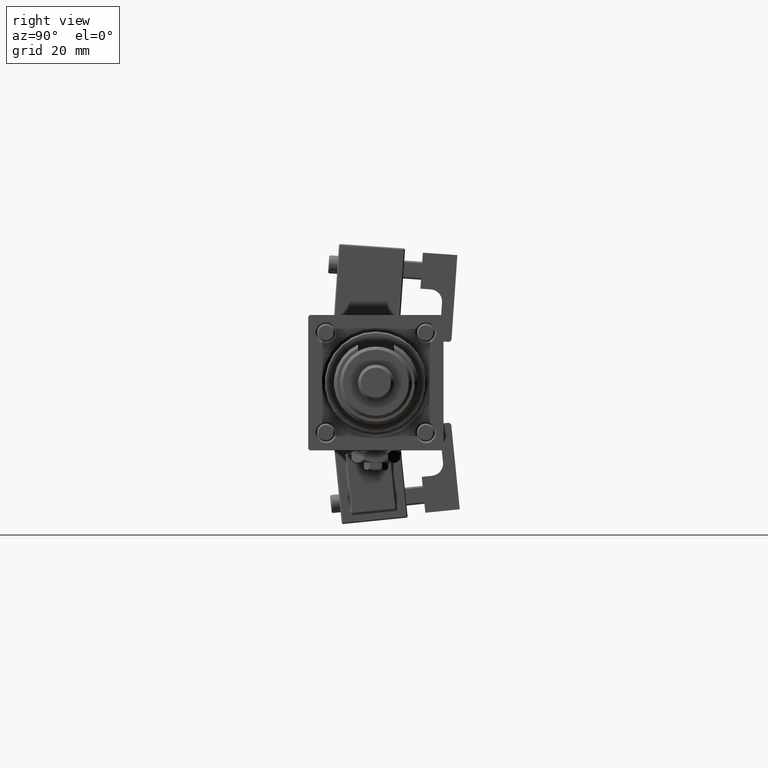
[diagram: clean part render]
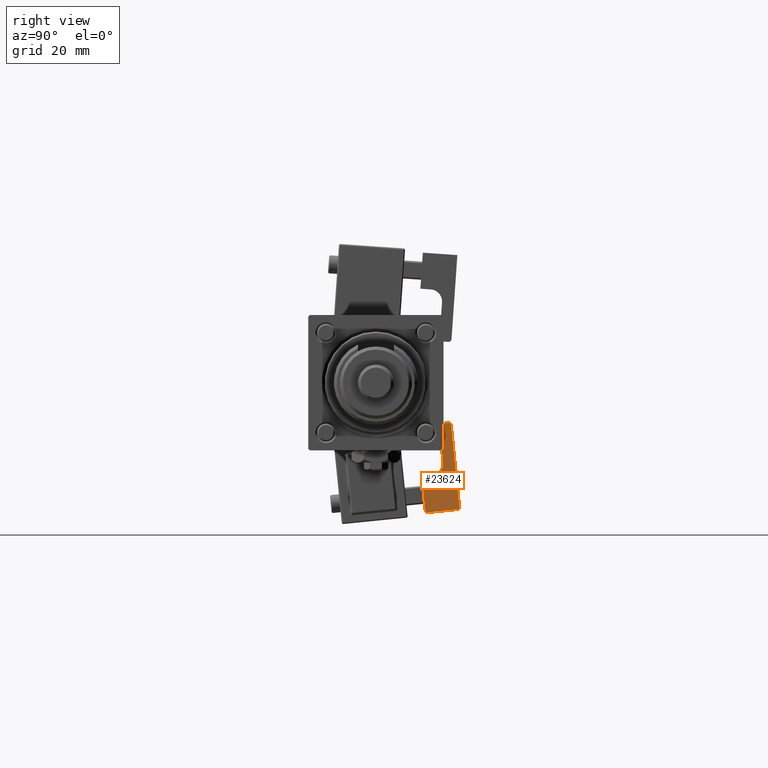
[diagram: same view with one face highlighted and labeled with its STEP entity id]
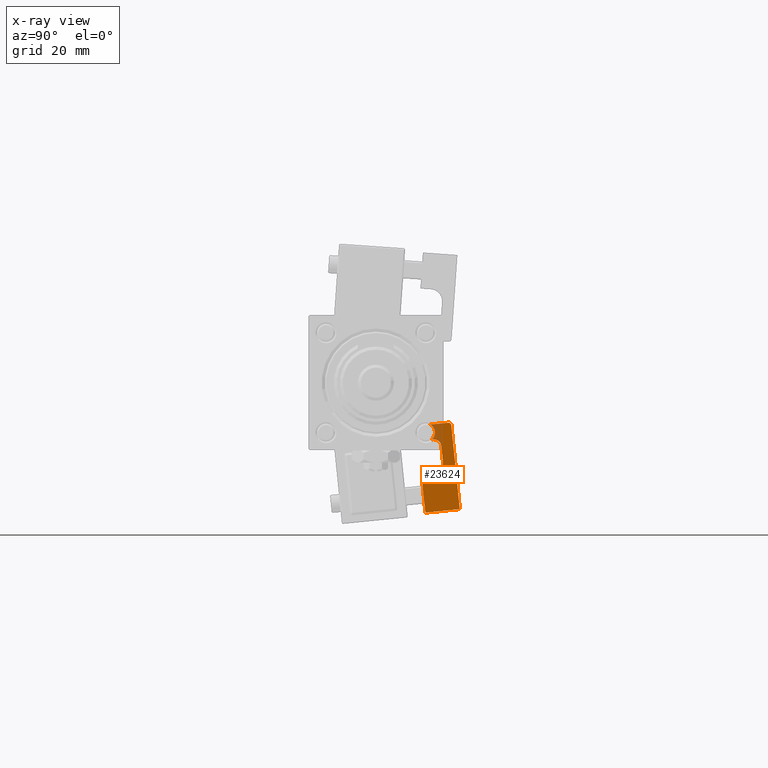
[diagram: x-ray of the same camera — body ghosted, the highlighted face saturated]
A machine part, right view. The second image highlights one B-rep face of the part: STEP entity #23624.
The next image is the same camera in x-ray: the body ghosted, the highlighted face saturated — about 9% of this face is hidden behind the body in this view.
In plain terms, the highlighted planar face has unit normal (-1, 0, 0).
Its self-contained STEP definition (entity closure, byte-faithful):
#560 = DIRECTION ( 'NONE',  ( 1.000000000000000000, -0.000000000000000000, -0.000000000000000000 ) ) ;
#645 = CARTESIAN_POINT ( 'NONE',  ( 5.750000000000000000, -0.7500000000000007772, 24.00000000000000000 ) ) ;
#732 = DIRECTION ( 'NONE',  ( -1.000000000000000000, 0.000000000000000000, 0.000000000000000000 ) ) ;
#939 = VECTOR ( 'NONE', #49760, 1000.000000000000000 ) ;
#1184 = VERTEX_POINT ( 'NONE', #7932 ) ;
#1903 = DIRECTION ( 'NONE',  ( -0.000000000000000000, 1.000000000000000000, -0.000000000000000000 ) ) ;
#2227 = FACE_OUTER_BOUND ( 'NONE', #51752, .T. ) ;
#3220 = ORIENTED_EDGE ( 'NONE', *, *, #60753, .T. ) ;
#4818 = EDGE_CURVE ( 'NONE', #17333, #14449, #44070, .T. ) ;
#5003 = CARTESIAN_POINT ( 'NONE',  ( 5.750000000000000000, 5.750000000000001776, 0.000000000000000000 ) ) ;
#5268 = VECTOR ( 'NONE', #16016, 1000.000000000000000 ) ;
#6730 = ORIENTED_EDGE ( 'NONE', *, *, #23138, .T. ) ;
#6750 = VECTOR ( 'NONE', #51138, 1000.000000000000000 ) ;
#6873 = VERTEX_POINT ( 'NONE', #54052 ) ;
#7206 = CARTESIAN_POINT ( 'NONE',  ( 5.750000000000000000, 5.750000000000000000, 29.00000000000000000 ) ) ;
#7501 = EDGE_CURVE ( 'NONE', #59745, #42732, #15166, .T. ) ;
#7932 = CARTESIAN_POINT ( 'NONE',  ( 5.750000000000000000, -1.249999999999999334, 24.00000000000000000 ) ) ;
#10207 = DIRECTION ( 'NONE',  ( 0.000000000000000000, 0.000000000000000000, 1.000000000000000000 ) ) ;
#10645 = CARTESIAN_POINT ( 'NONE',  ( 5.750000000000000000, -1.249999999999999334, 24.00000000000000000 ) ) ;
#11866 = AXIS2_PLACEMENT_3D ( 'NONE', #34960, #44016, #19787 ) ;
#11994 = VERTEX_POINT ( 'NONE', #24325 ) ;
#12386 = CARTESIAN_POINT ( 'NONE',  ( 5.750000000000000000, -1.249999999999999334, 29.00000000000000000 ) ) ;
#12469 = CARTESIAN_POINT ( 'NONE',  ( 5.750000000000000000, 1.750000000000000000, 24.00000000000000000 ) ) ;
#14449 = VERTEX_POINT ( 'NONE', #36596 ) ;
#15166 = LINE ( 'NONE', #39408, #57403 ) ;
#16016 = DIRECTION ( 'NONE',  ( -0.000000000000000000, -0.000000000000000000, -1.000000000000000000 ) ) ;
#17093 = DIRECTION ( 'NONE',  ( -1.000000000000000000, 0.000000000000000000, 0.000000000000000000 ) ) ;
#17333 = VERTEX_POINT ( 'NONE', #12386 ) ;
#18079 = ORIENTED_EDGE ( 'NONE', *, *, #24439, .T. ) ;
#18922 = CARTESIAN_POINT ( 'NONE',  ( 5.750000000000000000, 5.750000000000001776, 28.00000000000000000 ) ) ;
#19276 = ORIENTED_EDGE ( 'NONE', *, *, #41550, .F. ) ;
#19534 = DIRECTION ( 'NONE',  ( 0.000000000000000000, 0.7682212795973759611, -0.6401843996644797086 ) ) ;
#19787 = DIRECTION ( 'NONE',  ( 0.000000000000000000, 0.000000000000000000, 1.000000000000000000 ) ) ;
#20215 = VERTEX_POINT ( 'NONE', #60879 ) ;
#20353 = LINE ( 'NONE', #10645, #939 ) ;
#21736 = CARTESIAN_POINT ( 'NONE',  ( 5.750000000000000000, -0.7500000000000007772, 21.50000000000000000 ) ) ;
#23138 = EDGE_CURVE ( 'NONE', #46710, #11994, #28376, .T. ) ;
#23470 = DIRECTION ( 'NONE',  ( -0.000000000000000000, -0.000000000000000000, -1.000000000000000000 ) ) ;
#23624 = ADVANCED_FACE ( 'NONE', ( #2227 ), #51024, .F. ) ;
#23815 = ORIENTED_EDGE ( 'NONE', *, *, #51250, .T. ) ;
#23851 = CARTESIAN_POINT ( 'NONE',  ( 5.750000000000000000, 4.750000000000001776, 28.00000000000000000 ) ) ;
#24109 = EDGE_CURVE ( 'NONE', #6873, #17333, #30445, .T. ) ;
#24325 = CARTESIAN_POINT ( 'NONE',  ( 5.750000000000000000, -2.250000000000001776, 12.00000000000000000 ) ) ;
#24439 = EDGE_CURVE ( 'NONE', #14449, #33910, #48022, .T. ) ;
#24463 = VECTOR ( 'NONE', #19534, 1000.000000000000114 ) ;
#25729 = CARTESIAN_POINT ( 'NONE',  ( 5.750000000000000000, -5.750000000000000000, 0.000000000000000000 ) ) ;
#26435 = AXIS2_PLACEMENT_3D ( 'NONE', #59652, #63006, #10207 ) ;
#27675 = LINE ( 'NONE', #42832, #34063 ) ;
#28376 = CIRCLE ( 'NONE', #11866, 4.000000000000000000 ) ;
#30005 = EDGE_CURVE ( 'NONE', #35377, #37266, #53427, .T. ) ;
#30445 = LINE ( 'NONE', #7206, #6750 ) ;
#30725 = ORIENTED_EDGE ( 'NONE', *, *, #60442, .F. ) ;
#31246 = EDGE_CURVE ( 'NONE', #33469, #6873, #33715, .T. ) ;
#31747 = AXIS2_PLACEMENT_3D ( 'NONE', #21736, #732, #51129 ) ;
#33182 = ORIENTED_EDGE ( 'NONE', *, *, #4818, .T. ) ;
#33469 = VERTEX_POINT ( 'NONE', #18922 ) ;
#33715 = CIRCLE ( 'NONE', #60586, 1.000000000000000888 ) ;
#33910 = VERTEX_POINT ( 'NONE', #43711 ) ;
#33930 = ORIENTED_EDGE ( 'NONE', *, *, #30005, .T. ) ;
#34063 = VECTOR ( 'NONE', #46737, 1000.000000000000114 ) ;
#34731 = CARTESIAN_POINT ( 'NONE',  ( 5.750000000000000000, 1.749999999999999112, 21.50000000000000000 ) ) ;
#34960 = CARTESIAN_POINT ( 'NONE',  ( 5.750000000000000000, -2.250000000000002665, 16.00000000000000000 ) ) ;
#35377 = VERTEX_POINT ( 'NONE', #645 ) ;
#36596 = CARTESIAN_POINT ( 'NONE',  ( 5.750000000000000000, -1.015596606550550618, 28.80466383879212700 ) ) ;
#37266 = VERTEX_POINT ( 'NONE', #34731 ) ;
#37645 = DIRECTION ( 'NONE',  ( 0.000000000000000000, -3.071906155375595568E-16, -1.000000000000000000 ) ) ;
#37960 = EDGE_CURVE ( 'NONE', #20215, #59745, #57409, .T. ) ;
#38143 = VECTOR ( 'NONE', #23470, 1000.000000000000000 ) ;
#38598 = ORIENTED_EDGE ( 'NONE', *, *, #37960, .T. ) ;
#38750 = AXIS2_PLACEMENT_3D ( 'NONE', #61387, #17093, #40682 ) ;
#39408 = CARTESIAN_POINT ( 'NONE',  ( 5.750000000000000000, 5.750000000000001776, 0.000000000000000000 ) ) ;
#40682 = DIRECTION ( 'NONE',  ( 0.000000000000000000, 0.000000000000000000, 1.000000000000000000 ) ) ;
#40961 = ORIENTED_EDGE ( 'NONE', *, *, #7501, .T. ) ;
#41550 = EDGE_CURVE ( 'NONE', #33469, #42732, #59995, .T. ) ;
#42732 = VERTEX_POINT ( 'NONE', #5003 ) ;
#42832 = CARTESIAN_POINT ( 'NONE',  ( 5.750000000000000000, 1.749999999999999778, 26.50000000000000355 ) ) ;
#43711 = CARTESIAN_POINT ( 'NONE',  ( 5.750000000000000000, -1.015596606550550396, 24.19533616120787300 ) ) ;
#43929 = DIRECTION ( 'NONE',  ( -0.000000000000000000, 1.000000000000000000, -0.000000000000000000 ) ) ;
#44016 = DIRECTION ( 'NONE',  ( -1.000000000000000000, 0.000000000000000000, 0.000000000000000000 ) ) ;
#44070 = LINE ( 'NONE', #54413, #24463 ) ;
#44194 = DIRECTION ( 'NONE',  ( 0.000000000000000000, -2.602085213965208275E-15, 1.000000000000000000 ) ) ;
#44499 = CARTESIAN_POINT ( 'NONE',  ( 5.750000000000000000, 1.749999999999997558, 16.00000000000000000 ) ) ;
#46162 = LINE ( 'NONE', #50371, #60940 ) ;
#46710 = VERTEX_POINT ( 'NONE', #44499 ) ;
#46737 = DIRECTION ( 'NONE',  ( 0.000000000000000000, -0.7682212795973755171, -0.6401843996644802637 ) ) ;
#48022 = CIRCLE ( 'NONE', #26435, 2.999999999999999112 ) ;
#48331 = VECTOR ( 'NONE', #37645, 1000.000000000000000 ) ;
#49760 = DIRECTION ( 'NONE',  ( 0.000000000000000000, 1.000000000000000000, 0.000000000000000000 ) ) ;
#50371 = CARTESIAN_POINT ( 'NONE',  ( 5.750000000000000000, 5.750000000000001776, 12.00000000000000000 ) ) ;
#50542 = ORIENTED_EDGE ( 'NONE', *, *, #31246, .T. ) ;
#51024 = PLANE ( 'NONE',  #38750 ) ;
#51129 = DIRECTION ( 'NONE',  ( 0.000000000000000000, 0.000000000000000000, 1.000000000000000000 ) ) ;
#51138 = DIRECTION ( 'NONE',  ( 0.000000000000000000, -1.000000000000000000, 0.000000000000000000 ) ) ;
#51250 = EDGE_CURVE ( 'NONE', #37266, #46710, #56753, .T. ) ;
#51752 = EDGE_LOOP ( 'NONE', ( #19276, #50542, #54494, #33182, #18079, #3220, #58247, #33930, #23815, #6730, #30725, #38598, #40961 ) ) ;
#53427 = CIRCLE ( 'NONE', #31747, 2.499999999999998668 ) ;
#54052 = CARTESIAN_POINT ( 'NONE',  ( 5.750000000000000000, 4.750000000000002665, 29.00000000000000000 ) ) ;
#54413 = CARTESIAN_POINT ( 'NONE',  ( 5.750000000000000000, -1.249999999999999334, 29.00000000000000000 ) ) ;
#54494 = ORIENTED_EDGE ( 'NONE', *, *, #24109, .T. ) ;
#56753 = LINE ( 'NONE', #12469, #48331 ) ;
#57403 = VECTOR ( 'NONE', #43929, 1000.000000000000000 ) ;
#57409 = LINE ( 'NONE', #59311, #38143 ) ;
#57869 = EDGE_CURVE ( 'NONE', #1184, #35377, #20353, .T. ) ;
#58247 = ORIENTED_EDGE ( 'NONE', *, *, #57869, .T. ) ;
#59311 = CARTESIAN_POINT ( 'NONE',  ( 5.750000000000000000, -5.750000000000000000, 12.00000000000000000 ) ) ;
#59652 = CARTESIAN_POINT ( 'NONE',  ( 5.750000000000000000, -2.936149805543990521, 26.50000000000000000 ) ) ;
#59745 = VERTEX_POINT ( 'NONE', #25729 ) ;
#59995 = LINE ( 'NONE', #60639, #5268 ) ;
#60442 = EDGE_CURVE ( 'NONE', #20215, #11994, #46162, .T. ) ;
#60586 = AXIS2_PLACEMENT_3D ( 'NONE', #23851, #560, #44194 ) ;
#60639 = CARTESIAN_POINT ( 'NONE',  ( 5.750000000000000000, 5.750000000000001776, 12.00000000000000000 ) ) ;
#60753 = EDGE_CURVE ( 'NONE', #33910, #1184, #27675, .T. ) ;
#60879 = CARTESIAN_POINT ( 'NONE',  ( 5.750000000000000000, -5.750000000000000000, 12.00000000000000000 ) ) ;
#60940 = VECTOR ( 'NONE', #1903, 1000.000000000000000 ) ;
#61387 = CARTESIAN_POINT ( 'NONE',  ( 5.750000000000000000, 5.750000000000001776, 12.00000000000000000 ) ) ;
#63006 = DIRECTION ( 'NONE',  ( -1.000000000000000000, 0.000000000000000000, 0.000000000000000000 ) ) ;